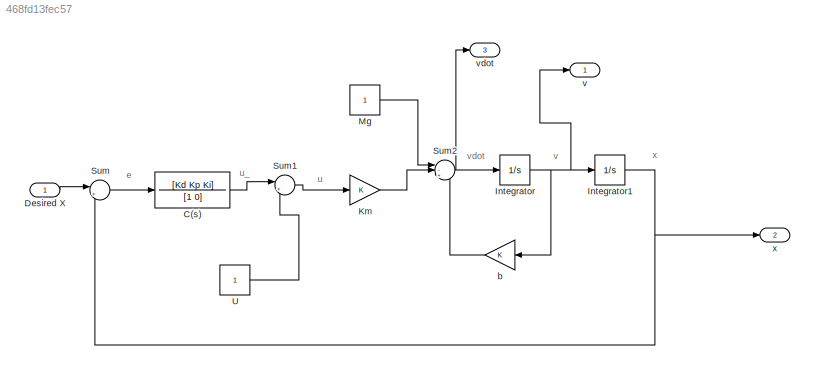
MODEL slx_468fd13fec57
KIND model
BLOCK [TransferFcn] C(s)
  Denominator = [1 0]
  Numerator = [Kd Kp Ki]
BLOCK [Inport] Desired X
  IconDisplay = Port number
BLOCK [Integrator] Integrator
  Ports = [1, 1]
BLOCK [Integrator] Integrator1
  Ports = [1, 1]
BLOCK [Gain] Km
  OutDataTypeStr = Inherit: Inherit via internal rule
  ParamDataTypeStr = Inherit: Inherit via internal rule
  SaturateOnIntegerOverflow = off
BLOCK [Constant] Mg
BLOCK [Sum] Sum
  IconShape = round
  InputSameDT = off
  Inputs = |++
  OutDataTypeStr = Inherit: Inherit via internal rule
  Ports = [2, 1]
  SaturateOnIntegerOverflow = off
BLOCK [Sum] Sum1
  IconShape = round
  InputSameDT = off
  Inputs = |++
  OutDataTypeStr = Inherit: Inherit via internal rule
  Ports = [2, 1]
  SaturateOnIntegerOverflow = off
BLOCK [Sum] Sum2
  IconShape = round
  InputSameDT = off
  Inputs = |-+-
  OutDataTypeStr = Inherit: Inherit via internal rule
  Ports = [3, 1]
  SaturateOnIntegerOverflow = off
BLOCK [Constant] U
BLOCK [Gain] b
  OutDataTypeStr = Inherit: Inherit via internal rule
  ParamDataTypeStr = Inherit: Inherit via internal rule
  SaturateOnIntegerOverflow = off
BLOCK [Outport] v
  IconDisplay = Port number
BLOCK [Outport] vdot
  IconDisplay = Port number
  Port = 3
BLOCK [Outport] x
  IconDisplay = Port number
  Port = 2
ANNOTATION (root): e
ANNOTATION (root): u
ANNOTATION (root): u_
ANNOTATION (root): v
ANNOTATION (root): vdot
ANNOTATION (root): x
LINE C(s):1 -> Sum1:1
LINE Desired X:1 -> Sum:1
NET Integrator1:1 -> Sum:2, x:1
NET Integrator:1 -> Integrator1:1, b:1, v:1
LINE Km:1 -> Sum2:2
LINE Mg:1 -> Sum2:1
LINE Sum1:1 -> Km:1
NET Sum2:1 -> Integrator:1, vdot:1
LINE Sum:1 -> C(s):1
LINE U:1 -> Sum1:2
LINE b:1 -> Sum2:3
note: NET lines group one-source signal fan-out (src -> all destinations, sorted); 1:1 wires keep LINE
